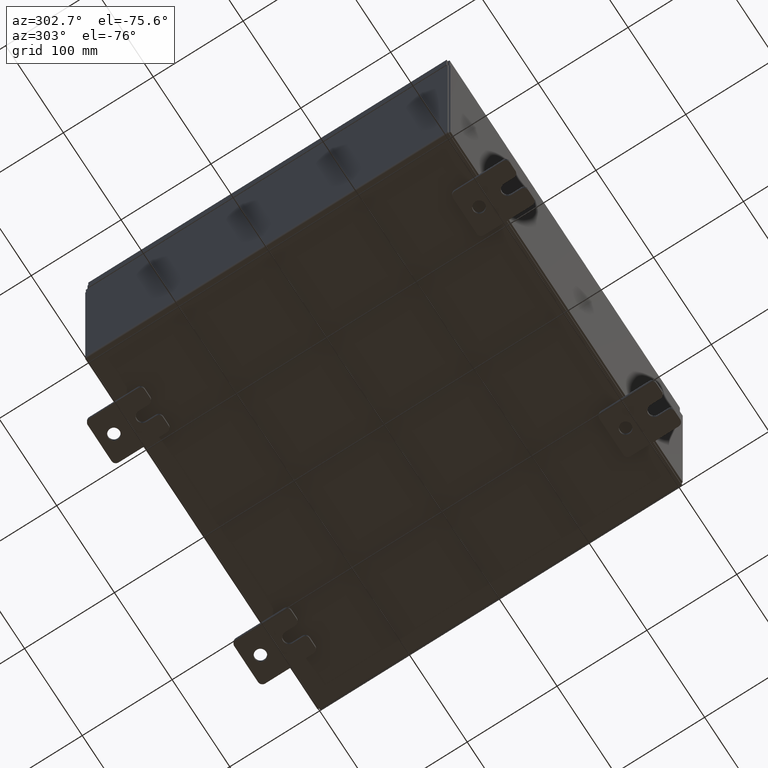
[diagram: clean part render]
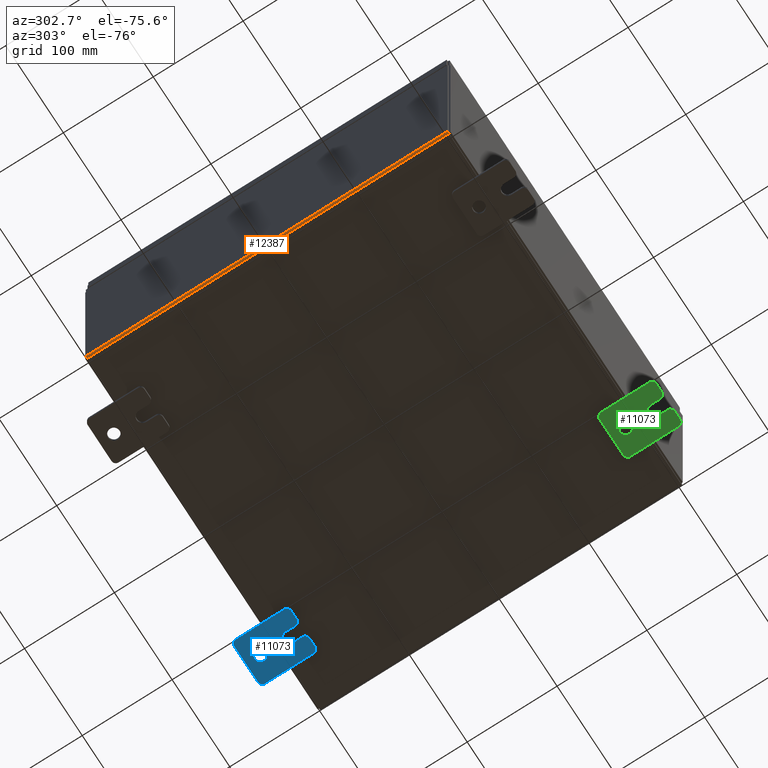
[diagram: same view with three faces highlighted in distinct colors, each labeled with its STEP entity id]
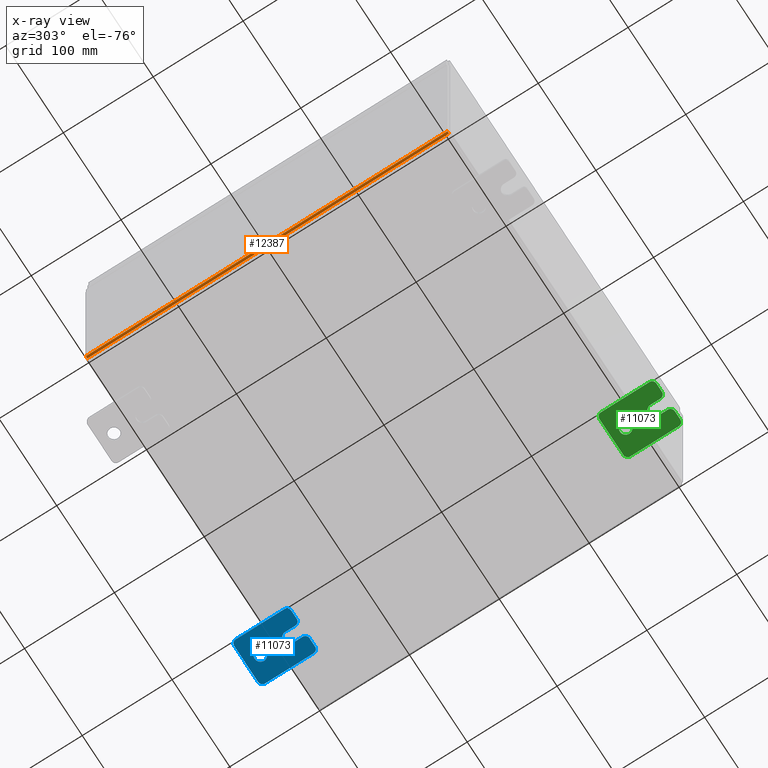
[diagram: x-ray of the same camera — body ghosted, the three highlighted faces saturated]
A machine part, auxiliary view with three faces highlighted in distinct colors.
The next image is the same camera in x-ray (body ghosted, the three faces saturated) — at least one of them is partly hidden behind the body in this view.
Their STEP definitions:

[orange] entity #12387 — the highlighted cylindrical surface (edge-blend (fillet) strip) has radius 2.2276 mm, axis along (0, -1, 0).
#310 = VERTEX_POINT ( 'NONE', #9939 ) ;
#2801 = ORIENTED_EDGE ( 'NONE', *, *, #24139, .F. ) ;
#5010 = ORIENTED_EDGE ( 'NONE', *, *, #13486, .F. ) ;
#7288 = VERTEX_POINT ( 'NONE', #57001 ) ;
#9370 = DIRECTION ( 'NONE',  ( 0.0000000000000000000, -1.000000000000000000, 0.0000000000000000000 ) ) ;
#9939 = CARTESIAN_POINT ( 'NONE',  ( -7.912300000000001000, 7.925299999999998200, -0.07470000000000000300 ) ) ;
#11060 = CARTESIAN_POINT ( 'NONE',  ( -7.912300000000001000, -7.925300000000000900, 0.01300000000000015200 ) ) ;
#11187 = VECTOR ( 'NONE', #59729, 39.37007874015748100 ) ;
#12387 = ADVANCED_FACE ( 'NONE', ( #16433 ), #40519, .T. ) ;
#13486 = EDGE_CURVE ( 'NONE', #7288, #42591, #56328, .T. ) ;
#16433 = FACE_OUTER_BOUND ( 'NONE', #27806, .T. ) ;
#19632 = VERTEX_POINT ( 'NONE', #46349 ) ;
#21120 = DIRECTION ( 'NONE',  ( -0.0000000000000000000, 1.000000000000000000, -0.0000000000000000000 ) ) ;
#24139 = EDGE_CURVE ( 'NONE', #42591, #310, #38346, .T. ) ;
#24592 = ORIENTED_EDGE ( 'NONE', *, *, #25073, .F. ) ;
#25073 = EDGE_CURVE ( 'NONE', #310, #19632, #36786, .T. ) ;
#27806 = EDGE_LOOP ( 'NONE', ( #2801, #5010, #38599, #24592 ) ) ;
#29325 = AXIS2_PLACEMENT_3D ( 'NONE', #49945, #21120, #54790 ) ;
#30381 = CARTESIAN_POINT ( 'NONE',  ( -8.000000000000001800, 7.925299999999998200, 0.01299999999999984700 ) ) ;
#30458 = VECTOR ( 'NONE', #59281, 39.37007874015748100 ) ;
#31957 = LINE ( 'NONE', #30381, #30458 ) ;
#35327 = DIRECTION ( 'NONE',  ( 0.0000000000000000000, -1.000000000000000000, 0.0000000000000000000 ) ) ;
#36786 = CIRCLE ( 'NONE', #29325, 0.08770000000000009700 ) ;
#38275 = CARTESIAN_POINT ( 'NONE',  ( -7.912300000000001000, -7.925300000000000900, 0.01300000000000015200 ) ) ;
#38346 = LINE ( 'NONE', #54837, #11187 ) ;
#38599 = ORIENTED_EDGE ( 'NONE', *, *, #40736, .T. ) ;
#40150 = DIRECTION ( 'NONE',  ( -1.000000000000000000, 0.0000000000000000000, -3.528701887483225300E-015 ) ) ;
#40519 = CYLINDRICAL_SURFACE ( 'NONE', #55989, 0.08770000000000026400 ) ;
#40736 = EDGE_CURVE ( 'NONE', #7288, #19632, #31957, .T. ) ;
#42591 = VERTEX_POINT ( 'NONE', #47969 ) ;
#43115 = DIRECTION ( 'NONE',  ( 0.0000000000000000000, 0.0000000000000000000, -1.000000000000000000 ) ) ;
#45932 = AXIS2_PLACEMENT_3D ( 'NONE', #38275, #9370, #43115 ) ;
#46349 = CARTESIAN_POINT ( 'NONE',  ( -8.000000000000001800, 7.925299999999998200, 0.01299999999999984300 ) ) ;
#47969 = CARTESIAN_POINT ( 'NONE',  ( -7.912300000000001000, -7.925300000000000900, -0.07469999999999994700 ) ) ;
#49945 = CARTESIAN_POINT ( 'NONE',  ( -7.912300000000001000, 7.925299999999998200, 0.01300000000000015200 ) ) ;
#54790 = DIRECTION ( 'NONE',  ( 0.0000000000000000000, 0.0000000000000000000, -1.000000000000000000 ) ) ;
#54837 = CARTESIAN_POINT ( 'NONE',  ( -7.912300000000001000, -7.925300000000000900, -0.07469999999999994700 ) ) ;
#55989 = AXIS2_PLACEMENT_3D ( 'NONE', #11060, #35327, #40150 ) ;
#56328 = CIRCLE ( 'NONE', #45932, 0.08770000000000009700 ) ;
#57001 = CARTESIAN_POINT ( 'NONE',  ( -8.000000000000001800, -7.925300000000000900, 0.01299999999999984700 ) ) ;
#59281 = DIRECTION ( 'NONE',  ( -0.0000000000000000000, 1.000000000000000000, -0.0000000000000000000 ) ) ;
#59729 = DIRECTION ( 'NONE',  ( -0.0000000000000000000, 1.000000000000000000, -0.0000000000000000000 ) ) ;

[blue] entity #11073 — the highlighted planar face has unit normal (0, 0, 1).
#50 = CIRCLE ( 'NONE', #11473, 0.1900000000000011100 ) ;
#167 = VERTEX_POINT ( 'NONE', #325 ) ;
#171 = LINE ( 'NONE', #50945, #13050 ) ;
#325 = CARTESIAN_POINT ( 'NONE',  ( -0.1880000000000001900, -0.6249999999999992200, 0.2500000000000005000 ) ) ;
#456 = VERTEX_POINT ( 'NONE', #2440 ) ;
#698 = EDGE_CURVE ( 'NONE', #36024, #17256, #17023, .T. ) ;
#1446 = LINE ( 'NONE', #18304, #27181 ) ;
#1564 = CIRCLE ( 'NONE', #2026, 0.1900000000000011400 ) ;
#2026 = AXIS2_PLACEMENT_3D ( 'NONE', #54652, #25823, #59563 ) ;
#2440 = CARTESIAN_POINT ( 'NONE',  ( -0.1880000000000004700, -1.060000000000002100, 0.2500000000000005000 ) ) ;
#2566 = CARTESIAN_POINT ( 'NONE',  ( -0.1879999999999997800, 1.249999999999994700, -0.8100000000000092700 ) ) ;
#2842 = DIRECTION ( 'NONE',  ( -0.0000000000000000000, 0.0000000000000000000, -1.000000000000000000 ) ) ;
#3186 = AXIS2_PLACEMENT_3D ( 'NONE', #12406, #46128, #17311 ) ;
#3743 = DIRECTION ( 'NONE',  ( 6.556435184794182400E-016, 1.000000000000000000, 0.0000000000000000000 ) ) ;
#3772 = ORIENTED_EDGE ( 'NONE', *, *, #698, .F. ) ;
#4382 = EDGE_CURVE ( 'NONE', #167, #45216, #7062, .T. ) ;
#4483 = CARTESIAN_POINT ( 'NONE',  ( -0.1879999999999997800, 1.059999999999996300, 0.8099999999999938400 ) ) ;
#5489 = CARTESIAN_POINT ( 'NONE',  ( -0.1879999999999997800, 1.249999999999997300, 0.8099999999999935000 ) ) ;
#5690 = DIRECTION ( 'NONE',  ( -1.000000000000000000, 6.523827964459549700E-016, 5.163192708025532000E-017 ) ) ;
#6153 = CARTESIAN_POINT ( 'NONE',  ( -0.1880000000000001900, -0.6249999999999992200, -0.2499999999999998600 ) ) ;
#6288 = DIRECTION ( 'NONE',  ( 0.0000000000000000000, -1.000000000000000000, 1.639108796198558100E-015 ) ) ;
#6434 = ORIENTED_EDGE ( 'NONE', *, *, #20566, .F. ) ;
#6732 = CARTESIAN_POINT ( 'NONE',  ( -0.1880000000000010000, 0.6249999999999992200, -7.703811342100550500E-020 ) ) ;
#7007 = VECTOR ( 'NONE', #3743, 39.37007874015748100 ) ;
#7062 = CIRCLE ( 'NONE', #25106, 0.2499999999999999200 ) ;
#7265 = CARTESIAN_POINT ( 'NONE',  ( -0.1880000000000010000, 0.6249999999999992200, -0.2499999999999999200 ) ) ;
#7661 = AXIS2_PLACEMENT_3D ( 'NONE', #6732, #40452, #11572 ) ;
#8169 = ORIENTED_EDGE ( 'NONE', *, *, #53731, .F. ) ;
#8386 = CIRCLE ( 'NONE', #33924, 0.1900000000000011100 ) ;
#8897 = VERTEX_POINT ( 'NONE', #46108 ) ;
#9354 = DIRECTION ( 'NONE',  ( 0.0000000000000000000, 0.0000000000000000000, -1.000000000000000000 ) ) ;
#9658 = FACE_OUTER_BOUND ( 'NONE', #44565, .T. ) ;
#10922 = CARTESIAN_POINT ( 'NONE',  ( -0.1879999999999997800, 1.249999999999997600, 0.9999999999999951200 ) ) ;
#11073 = ADVANCED_FACE ( 'NONE', ( #22542, #9658 ), #26958, .F. ) ;
#11473 = AXIS2_PLACEMENT_3D ( 'NONE', #21735, #55407, #26572 ) ;
#11572 = DIRECTION ( 'NONE',  ( 0.0000000000000000000, 0.0000000000000000000, -1.000000000000000000 ) ) ;
#11692 = ORIENTED_EDGE ( 'NONE', *, *, #55567, .T. ) ;
#11873 = ORIENTED_EDGE ( 'NONE', *, *, #55023, .T. ) ;
#11878 = EDGE_LOOP ( 'NONE', ( #25616, #40429 ) ) ;
#12260 = VERTEX_POINT ( 'NONE', #29871 ) ;
#12406 = CARTESIAN_POINT ( 'NONE',  ( -0.1880000000000010000, 0.6249999999999992200, -7.703811342100550500E-020 ) ) ;
#12911 = ORIENTED_EDGE ( 'NONE', *, *, #25696, .F. ) ;
#13050 = VECTOR ( 'NONE', #22122, 39.37007874015748100 ) ;
#15548 = ORIENTED_EDGE ( 'NONE', *, *, #41256, .F. ) ;
#17023 = LINE ( 'NONE', #34935, #42610 ) ;
#17256 = VERTEX_POINT ( 'NONE', #53196 ) ;
#17288 = CARTESIAN_POINT ( 'NONE',  ( -0.1880000000000004700, -1.060000000000003400, -0.2499999999999994400 ) ) ;
#17311 = DIRECTION ( 'NONE',  ( 0.0000000000000000000, 0.0000000000000000000, -1.000000000000000000 ) ) ;
#18304 = CARTESIAN_POINT ( 'NONE',  ( -0.1880000000000001900, -0.6249999999999992200, -0.2499999999999993900 ) ) ;
#18314 = CIRCLE ( 'NONE', #52655, 0.1900000000000011100 ) ;
#18351 = ORIENTED_EDGE ( 'NONE', *, *, #45524, .F. ) ;
#18809 = EDGE_CURVE ( 'NONE', #456, #17256, #1564, .T. ) ;
#20116 = VECTOR ( 'NONE', #6288, 39.37007874015748100 ) ;
#20566 = EDGE_CURVE ( 'NONE', #45216, #42399, #1446, .T. ) ;
#20664 = ORIENTED_EDGE ( 'NONE', *, *, #48561, .F. ) ;
#21203 = DIRECTION ( 'NONE',  ( -1.000000000000000000, -0.0000000000000000000, 0.0000000000000000000 ) ) ;
#21309 = VERTEX_POINT ( 'NONE', #57522 ) ;
#21735 = CARTESIAN_POINT ( 'NONE',  ( -0.1879999999999997800, -1.060000000000001600, 0.8099999999999978300 ) ) ;
#22122 = DIRECTION ( 'NONE',  ( 0.0000000000000000000, 1.000000000000000000, -1.639108796198558100E-015 ) ) ;
#22542 = FACE_BOUND ( 'NONE', #11878, .T. ) ;
#25106 = AXIS2_PLACEMENT_3D ( 'NONE', #34607, #5690, #39429 ) ;
#25616 = ORIENTED_EDGE ( 'NONE', *, *, #31927, .T. ) ;
#25696 = EDGE_CURVE ( 'NONE', #44514, #59093, #61670, .T. ) ;
#25823 = DIRECTION ( 'NONE',  ( -1.000000000000000000, -0.0000000000000000000, 0.0000000000000000000 ) ) ;
#26388 = AXIS2_PLACEMENT_3D ( 'NONE', #4483, #38254, #9354 ) ;
#26400 = DIRECTION ( 'NONE',  ( -1.000000000000000000, -0.0000000000000000000, 0.0000000000000000000 ) ) ;
#26460 = CIRCLE ( 'NONE', #3186, 0.2499999999999999200 ) ;
#26572 = DIRECTION ( 'NONE',  ( 0.0000000000000000000, 7.189073667537492800E-016, -1.000000000000000000 ) ) ;
#26629 = CARTESIAN_POINT ( 'NONE',  ( -0.1879999999999997800, -1.060000000000003400, -0.4400000000000005000 ) ) ;
#26958 = PLANE ( 'NONE',  #46669 ) ;
#27181 = VECTOR ( 'NONE', #51956, 39.37007874015748100 ) ;
#27854 = CARTESIAN_POINT ( 'NONE',  ( -0.1880000000000005800, -1.250000000000003800, 0.2500000000000005000 ) ) ;
#28200 = CIRCLE ( 'NONE', #26388, 0.1900000000000011100 ) ;
#28379 = ORIENTED_EDGE ( 'NONE', *, *, #45416, .T. ) ;
#29677 = CARTESIAN_POINT ( 'NONE',  ( -0.1879999999999997800, 1.249999999999994200, -1.000000000000010400 ) ) ;
#29796 = CARTESIAN_POINT ( 'NONE',  ( -0.1880000000000010000, 0.6249999999999992200, 0.2499999999999999200 ) ) ;
#29871 = CARTESIAN_POINT ( 'NONE',  ( -0.1879999999999997800, -1.060000000000001200, 0.9999999999999988900 ) ) ;
#30236 = ORIENTED_EDGE ( 'NONE', *, *, #18809, .T. ) ;
#30795 = EDGE_CURVE ( 'NONE', #44514, #21309, #8386, .T. ) ;
#31302 = VERTEX_POINT ( 'NONE', #48968 ) ;
#31462 = DIRECTION ( 'NONE',  ( 0.0000000000000000000, 0.0000000000000000000, -1.000000000000000000 ) ) ;
#31797 = DIRECTION ( 'NONE',  ( 1.000000000000000000, 0.0000000000000000000, -0.0000000000000000000 ) ) ;
#31927 = EDGE_CURVE ( 'NONE', #56407, #37713, #55086, .T. ) ;
#32058 = EDGE_CURVE ( 'NONE', #37713, #56407, #26460, .T. ) ;
#33924 = AXIS2_PLACEMENT_3D ( 'NONE', #50026, #21203, #54878 ) ;
#34306 = DIRECTION ( 'NONE',  ( 0.0000000000000000000, 1.639108796198553600E-015, 1.000000000000000000 ) ) ;
#34607 = CARTESIAN_POINT ( 'NONE',  ( -0.1880000000000001900, -0.6249999999999992200, 6.829619984160658000E-017 ) ) ;
#34723 = DIRECTION ( 'NONE',  ( 0.0000000000000000000, -1.639108796198553600E-015, -1.000000000000000000 ) ) ;
#34935 = CARTESIAN_POINT ( 'NONE',  ( -0.1879999999999997800, -1.250000000000002200, 0.9999999999999992200 ) ) ;
#35997 = VECTOR ( 'NONE', #34306, 39.37007874015748100 ) ;
#36024 = VERTEX_POINT ( 'NONE', #39733 ) ;
#36075 = CIRCLE ( 'NONE', #47463, 0.1900000000000011100 ) ;
#37713 = VERTEX_POINT ( 'NONE', #29796 ) ;
#38199 = ORIENTED_EDGE ( 'NONE', *, *, #40362, .T. ) ;
#38254 = DIRECTION ( 'NONE',  ( -1.000000000000000000, -0.0000000000000000000, 0.0000000000000000000 ) ) ;
#39429 = DIRECTION ( 'NONE',  ( -6.829619984160660000E-016, -1.000000000000000000, 0.0000000000000000000 ) ) ;
#39733 = CARTESIAN_POINT ( 'NONE',  ( -0.1879999999999997800, -1.250000000000002400, 0.8099999999999980500 ) ) ;
#40362 = EDGE_CURVE ( 'NONE', #61108, #59093, #28200, .T. ) ;
#40429 = ORIENTED_EDGE ( 'NONE', *, *, #32058, .T. ) ;
#40452 = DIRECTION ( 'NONE',  ( 1.000000000000000000, -0.0000000000000000000, -5.163192708025532000E-017 ) ) ;
#41256 = EDGE_CURVE ( 'NONE', #456, #167, #45492, .T. ) ;
#42399 = VERTEX_POINT ( 'NONE', #17288 ) ;
#42610 = VECTOR ( 'NONE', #34723, 39.37007874015748100 ) ;
#42836 = VECTOR ( 'NONE', #56521, 39.37007874015748100 ) ;
#44215 = CARTESIAN_POINT ( 'NONE',  ( -0.1879999999999997800, -1.250000000000005300, -0.8100000000000047200 ) ) ;
#44366 = LINE ( 'NONE', #51653, #42836 ) ;
#44514 = VERTEX_POINT ( 'NONE', #2566 ) ;
#44565 = EDGE_LOOP ( 'NONE', ( #3772, #11692, #20664, #38199, #12911, #45017, #8169, #11873, #18351, #28379, #6434, #48901, #15548, #30236 ) ) ;
#45017 = ORIENTED_EDGE ( 'NONE', *, *, #30795, .T. ) ;
#45216 = VERTEX_POINT ( 'NONE', #6153 ) ;
#45416 = EDGE_CURVE ( 'NONE', #8897, #42399, #36075, .T. ) ;
#45492 = LINE ( 'NONE', #27854, #7007 ) ;
#45524 = EDGE_CURVE ( 'NONE', #8897, #53501, #44366, .T. ) ;
#46108 = CARTESIAN_POINT ( 'NONE',  ( -0.1879999999999997800, -1.250000000000004700, -0.4400000000000002200 ) ) ;
#46128 = DIRECTION ( 'NONE',  ( 1.000000000000000000, -0.0000000000000000000, -5.163192708025532000E-017 ) ) ;
#46669 = AXIS2_PLACEMENT_3D ( 'NONE', #50951, #31797, #2842 ) ;
#47463 = AXIS2_PLACEMENT_3D ( 'NONE', #26629, #60369, #31462 ) ;
#48561 = EDGE_CURVE ( 'NONE', #61108, #12260, #50237, .T. ) ;
#48901 = ORIENTED_EDGE ( 'NONE', *, *, #4382, .F. ) ;
#48968 = CARTESIAN_POINT ( 'NONE',  ( -0.1879999999999997800, -1.060000000000004500, -1.000000000000006400 ) ) ;
#50026 = CARTESIAN_POINT ( 'NONE',  ( -0.1879999999999997800, 1.059999999999993600, -0.8100000000000089400 ) ) ;
#50237 = LINE ( 'NONE', #10922, #20116 ) ;
#50945 = CARTESIAN_POINT ( 'NONE',  ( -0.1879999999999997800, -1.250000000000005600, -1.000000000000006200 ) ) ;
#50951 = CARTESIAN_POINT ( 'NONE',  ( -0.1879999999999997800, 0.0000000000000000000, 0.0000000000000000000 ) ) ;
#51255 = CARTESIAN_POINT ( 'NONE',  ( -0.1879999999999997800, 1.059999999999996500, 0.9999999999999953400 ) ) ;
#51653 = CARTESIAN_POINT ( 'NONE',  ( -0.1879999999999997800, -1.250000000000002200, 0.9999999999999992200 ) ) ;
#51956 = DIRECTION ( 'NONE',  ( -6.556435184794182400E-016, -1.000000000000000000, -1.639108796198545600E-016 ) ) ;
#52655 = AXIS2_PLACEMENT_3D ( 'NONE', #55231, #26400, #60128 ) ;
#53196 = CARTESIAN_POINT ( 'NONE',  ( -0.1879999999999997800, -1.250000000000003100, 0.4400000000000020000 ) ) ;
#53501 = VERTEX_POINT ( 'NONE', #44215 ) ;
#53731 = EDGE_CURVE ( 'NONE', #31302, #21309, #171, .T. ) ;
#54652 = CARTESIAN_POINT ( 'NONE',  ( -0.1879999999999997800, -1.060000000000002100, 0.4400000000000016700 ) ) ;
#54878 = DIRECTION ( 'NONE',  ( 0.0000000000000000000, 0.0000000000000000000, -1.000000000000000000 ) ) ;
#55023 = EDGE_CURVE ( 'NONE', #31302, #53501, #18314, .T. ) ;
#55086 = CIRCLE ( 'NONE', #7661, 0.2499999999999999200 ) ;
#55231 = CARTESIAN_POINT ( 'NONE',  ( -0.1879999999999997800, -1.060000000000004100, -0.8100000000000050500 ) ) ;
#55407 = DIRECTION ( 'NONE',  ( -1.000000000000000000, -0.0000000000000000000, 0.0000000000000000000 ) ) ;
#55567 = EDGE_CURVE ( 'NONE', #36024, #12260, #50, .T. ) ;
#56407 = VERTEX_POINT ( 'NONE', #7265 ) ;
#56521 = DIRECTION ( 'NONE',  ( 0.0000000000000000000, -1.639108796198553600E-015, -1.000000000000000000 ) ) ;
#57522 = CARTESIAN_POINT ( 'NONE',  ( -0.1879999999999997800, 1.059999999999993400, -1.000000000000010000 ) ) ;
#59093 = VERTEX_POINT ( 'NONE', #5489 ) ;
#59563 = DIRECTION ( 'NONE',  ( 0.0000000000000000000, 0.0000000000000000000, -1.000000000000000000 ) ) ;
#60128 = DIRECTION ( 'NONE',  ( 0.0000000000000000000, 0.0000000000000000000, -1.000000000000000000 ) ) ;
#60369 = DIRECTION ( 'NONE',  ( -1.000000000000000000, -0.0000000000000000000, 0.0000000000000000000 ) ) ;
#61108 = VERTEX_POINT ( 'NONE', #51255 ) ;
#61670 = LINE ( 'NONE', #29677, #35997 ) ;

[green] entity #11073 — the highlighted planar face has unit normal (0, 0, 1).
#50 = CIRCLE ( 'NONE', #11473, 0.1900000000000011100 ) ;
#167 = VERTEX_POINT ( 'NONE', #325 ) ;
#171 = LINE ( 'NONE', #50945, #13050 ) ;
#325 = CARTESIAN_POINT ( 'NONE',  ( -0.1880000000000001900, -0.6249999999999992200, 0.2500000000000005000 ) ) ;
#456 = VERTEX_POINT ( 'NONE', #2440 ) ;
#698 = EDGE_CURVE ( 'NONE', #36024, #17256, #17023, .T. ) ;
#1446 = LINE ( 'NONE', #18304, #27181 ) ;
#1564 = CIRCLE ( 'NONE', #2026, 0.1900000000000011400 ) ;
#2026 = AXIS2_PLACEMENT_3D ( 'NONE', #54652, #25823, #59563 ) ;
#2440 = CARTESIAN_POINT ( 'NONE',  ( -0.1880000000000004700, -1.060000000000002100, 0.2500000000000005000 ) ) ;
#2566 = CARTESIAN_POINT ( 'NONE',  ( -0.1879999999999997800, 1.249999999999994700, -0.8100000000000092700 ) ) ;
#2842 = DIRECTION ( 'NONE',  ( -0.0000000000000000000, 0.0000000000000000000, -1.000000000000000000 ) ) ;
#3186 = AXIS2_PLACEMENT_3D ( 'NONE', #12406, #46128, #17311 ) ;
#3743 = DIRECTION ( 'NONE',  ( 6.556435184794182400E-016, 1.000000000000000000, 0.0000000000000000000 ) ) ;
#3772 = ORIENTED_EDGE ( 'NONE', *, *, #698, .F. ) ;
#4382 = EDGE_CURVE ( 'NONE', #167, #45216, #7062, .T. ) ;
#4483 = CARTESIAN_POINT ( 'NONE',  ( -0.1879999999999997800, 1.059999999999996300, 0.8099999999999938400 ) ) ;
#5489 = CARTESIAN_POINT ( 'NONE',  ( -0.1879999999999997800, 1.249999999999997300, 0.8099999999999935000 ) ) ;
#5690 = DIRECTION ( 'NONE',  ( -1.000000000000000000, 6.523827964459549700E-016, 5.163192708025532000E-017 ) ) ;
#6153 = CARTESIAN_POINT ( 'NONE',  ( -0.1880000000000001900, -0.6249999999999992200, -0.2499999999999998600 ) ) ;
#6288 = DIRECTION ( 'NONE',  ( 0.0000000000000000000, -1.000000000000000000, 1.639108796198558100E-015 ) ) ;
#6434 = ORIENTED_EDGE ( 'NONE', *, *, #20566, .F. ) ;
#6732 = CARTESIAN_POINT ( 'NONE',  ( -0.1880000000000010000, 0.6249999999999992200, -7.703811342100550500E-020 ) ) ;
#7007 = VECTOR ( 'NONE', #3743, 39.37007874015748100 ) ;
#7062 = CIRCLE ( 'NONE', #25106, 0.2499999999999999200 ) ;
#7265 = CARTESIAN_POINT ( 'NONE',  ( -0.1880000000000010000, 0.6249999999999992200, -0.2499999999999999200 ) ) ;
#7661 = AXIS2_PLACEMENT_3D ( 'NONE', #6732, #40452, #11572 ) ;
#8169 = ORIENTED_EDGE ( 'NONE', *, *, #53731, .F. ) ;
#8386 = CIRCLE ( 'NONE', #33924, 0.1900000000000011100 ) ;
#8897 = VERTEX_POINT ( 'NONE', #46108 ) ;
#9354 = DIRECTION ( 'NONE',  ( 0.0000000000000000000, 0.0000000000000000000, -1.000000000000000000 ) ) ;
#9658 = FACE_OUTER_BOUND ( 'NONE', #44565, .T. ) ;
#10922 = CARTESIAN_POINT ( 'NONE',  ( -0.1879999999999997800, 1.249999999999997600, 0.9999999999999951200 ) ) ;
#11073 = ADVANCED_FACE ( 'NONE', ( #22542, #9658 ), #26958, .F. ) ;
#11473 = AXIS2_PLACEMENT_3D ( 'NONE', #21735, #55407, #26572 ) ;
#11572 = DIRECTION ( 'NONE',  ( 0.0000000000000000000, 0.0000000000000000000, -1.000000000000000000 ) ) ;
#11692 = ORIENTED_EDGE ( 'NONE', *, *, #55567, .T. ) ;
#11873 = ORIENTED_EDGE ( 'NONE', *, *, #55023, .T. ) ;
#11878 = EDGE_LOOP ( 'NONE', ( #25616, #40429 ) ) ;
#12260 = VERTEX_POINT ( 'NONE', #29871 ) ;
#12406 = CARTESIAN_POINT ( 'NONE',  ( -0.1880000000000010000, 0.6249999999999992200, -7.703811342100550500E-020 ) ) ;
#12911 = ORIENTED_EDGE ( 'NONE', *, *, #25696, .F. ) ;
#13050 = VECTOR ( 'NONE', #22122, 39.37007874015748100 ) ;
#15548 = ORIENTED_EDGE ( 'NONE', *, *, #41256, .F. ) ;
#17023 = LINE ( 'NONE', #34935, #42610 ) ;
#17256 = VERTEX_POINT ( 'NONE', #53196 ) ;
#17288 = CARTESIAN_POINT ( 'NONE',  ( -0.1880000000000004700, -1.060000000000003400, -0.2499999999999994400 ) ) ;
#17311 = DIRECTION ( 'NONE',  ( 0.0000000000000000000, 0.0000000000000000000, -1.000000000000000000 ) ) ;
#18304 = CARTESIAN_POINT ( 'NONE',  ( -0.1880000000000001900, -0.6249999999999992200, -0.2499999999999993900 ) ) ;
#18314 = CIRCLE ( 'NONE', #52655, 0.1900000000000011100 ) ;
#18351 = ORIENTED_EDGE ( 'NONE', *, *, #45524, .F. ) ;
#18809 = EDGE_CURVE ( 'NONE', #456, #17256, #1564, .T. ) ;
#20116 = VECTOR ( 'NONE', #6288, 39.37007874015748100 ) ;
#20566 = EDGE_CURVE ( 'NONE', #45216, #42399, #1446, .T. ) ;
#20664 = ORIENTED_EDGE ( 'NONE', *, *, #48561, .F. ) ;
#21203 = DIRECTION ( 'NONE',  ( -1.000000000000000000, -0.0000000000000000000, 0.0000000000000000000 ) ) ;
#21309 = VERTEX_POINT ( 'NONE', #57522 ) ;
#21735 = CARTESIAN_POINT ( 'NONE',  ( -0.1879999999999997800, -1.060000000000001600, 0.8099999999999978300 ) ) ;
#22122 = DIRECTION ( 'NONE',  ( 0.0000000000000000000, 1.000000000000000000, -1.639108796198558100E-015 ) ) ;
#22542 = FACE_BOUND ( 'NONE', #11878, .T. ) ;
#25106 = AXIS2_PLACEMENT_3D ( 'NONE', #34607, #5690, #39429 ) ;
#25616 = ORIENTED_EDGE ( 'NONE', *, *, #31927, .T. ) ;
#25696 = EDGE_CURVE ( 'NONE', #44514, #59093, #61670, .T. ) ;
#25823 = DIRECTION ( 'NONE',  ( -1.000000000000000000, -0.0000000000000000000, 0.0000000000000000000 ) ) ;
#26388 = AXIS2_PLACEMENT_3D ( 'NONE', #4483, #38254, #9354 ) ;
#26400 = DIRECTION ( 'NONE',  ( -1.000000000000000000, -0.0000000000000000000, 0.0000000000000000000 ) ) ;
#26460 = CIRCLE ( 'NONE', #3186, 0.2499999999999999200 ) ;
#26572 = DIRECTION ( 'NONE',  ( 0.0000000000000000000, 7.189073667537492800E-016, -1.000000000000000000 ) ) ;
#26629 = CARTESIAN_POINT ( 'NONE',  ( -0.1879999999999997800, -1.060000000000003400, -0.4400000000000005000 ) ) ;
#26958 = PLANE ( 'NONE',  #46669 ) ;
#27181 = VECTOR ( 'NONE', #51956, 39.37007874015748100 ) ;
#27854 = CARTESIAN_POINT ( 'NONE',  ( -0.1880000000000005800, -1.250000000000003800, 0.2500000000000005000 ) ) ;
#28200 = CIRCLE ( 'NONE', #26388, 0.1900000000000011100 ) ;
#28379 = ORIENTED_EDGE ( 'NONE', *, *, #45416, .T. ) ;
#29677 = CARTESIAN_POINT ( 'NONE',  ( -0.1879999999999997800, 1.249999999999994200, -1.000000000000010400 ) ) ;
#29796 = CARTESIAN_POINT ( 'NONE',  ( -0.1880000000000010000, 0.6249999999999992200, 0.2499999999999999200 ) ) ;
#29871 = CARTESIAN_POINT ( 'NONE',  ( -0.1879999999999997800, -1.060000000000001200, 0.9999999999999988900 ) ) ;
#30236 = ORIENTED_EDGE ( 'NONE', *, *, #18809, .T. ) ;
#30795 = EDGE_CURVE ( 'NONE', #44514, #21309, #8386, .T. ) ;
#31302 = VERTEX_POINT ( 'NONE', #48968 ) ;
#31462 = DIRECTION ( 'NONE',  ( 0.0000000000000000000, 0.0000000000000000000, -1.000000000000000000 ) ) ;
#31797 = DIRECTION ( 'NONE',  ( 1.000000000000000000, 0.0000000000000000000, -0.0000000000000000000 ) ) ;
#31927 = EDGE_CURVE ( 'NONE', #56407, #37713, #55086, .T. ) ;
#32058 = EDGE_CURVE ( 'NONE', #37713, #56407, #26460, .T. ) ;
#33924 = AXIS2_PLACEMENT_3D ( 'NONE', #50026, #21203, #54878 ) ;
#34306 = DIRECTION ( 'NONE',  ( 0.0000000000000000000, 1.639108796198553600E-015, 1.000000000000000000 ) ) ;
#34607 = CARTESIAN_POINT ( 'NONE',  ( -0.1880000000000001900, -0.6249999999999992200, 6.829619984160658000E-017 ) ) ;
#34723 = DIRECTION ( 'NONE',  ( 0.0000000000000000000, -1.639108796198553600E-015, -1.000000000000000000 ) ) ;
#34935 = CARTESIAN_POINT ( 'NONE',  ( -0.1879999999999997800, -1.250000000000002200, 0.9999999999999992200 ) ) ;
#35997 = VECTOR ( 'NONE', #34306, 39.37007874015748100 ) ;
#36024 = VERTEX_POINT ( 'NONE', #39733 ) ;
#36075 = CIRCLE ( 'NONE', #47463, 0.1900000000000011100 ) ;
#37713 = VERTEX_POINT ( 'NONE', #29796 ) ;
#38199 = ORIENTED_EDGE ( 'NONE', *, *, #40362, .T. ) ;
#38254 = DIRECTION ( 'NONE',  ( -1.000000000000000000, -0.0000000000000000000, 0.0000000000000000000 ) ) ;
#39429 = DIRECTION ( 'NONE',  ( -6.829619984160660000E-016, -1.000000000000000000, 0.0000000000000000000 ) ) ;
#39733 = CARTESIAN_POINT ( 'NONE',  ( -0.1879999999999997800, -1.250000000000002400, 0.8099999999999980500 ) ) ;
#40362 = EDGE_CURVE ( 'NONE', #61108, #59093, #28200, .T. ) ;
#40429 = ORIENTED_EDGE ( 'NONE', *, *, #32058, .T. ) ;
#40452 = DIRECTION ( 'NONE',  ( 1.000000000000000000, -0.0000000000000000000, -5.163192708025532000E-017 ) ) ;
#41256 = EDGE_CURVE ( 'NONE', #456, #167, #45492, .T. ) ;
#42399 = VERTEX_POINT ( 'NONE', #17288 ) ;
#42610 = VECTOR ( 'NONE', #34723, 39.37007874015748100 ) ;
#42836 = VECTOR ( 'NONE', #56521, 39.37007874015748100 ) ;
#44215 = CARTESIAN_POINT ( 'NONE',  ( -0.1879999999999997800, -1.250000000000005300, -0.8100000000000047200 ) ) ;
#44366 = LINE ( 'NONE', #51653, #42836 ) ;
#44514 = VERTEX_POINT ( 'NONE', #2566 ) ;
#44565 = EDGE_LOOP ( 'NONE', ( #3772, #11692, #20664, #38199, #12911, #45017, #8169, #11873, #18351, #28379, #6434, #48901, #15548, #30236 ) ) ;
#45017 = ORIENTED_EDGE ( 'NONE', *, *, #30795, .T. ) ;
#45216 = VERTEX_POINT ( 'NONE', #6153 ) ;
#45416 = EDGE_CURVE ( 'NONE', #8897, #42399, #36075, .T. ) ;
#45492 = LINE ( 'NONE', #27854, #7007 ) ;
#45524 = EDGE_CURVE ( 'NONE', #8897, #53501, #44366, .T. ) ;
#46108 = CARTESIAN_POINT ( 'NONE',  ( -0.1879999999999997800, -1.250000000000004700, -0.4400000000000002200 ) ) ;
#46128 = DIRECTION ( 'NONE',  ( 1.000000000000000000, -0.0000000000000000000, -5.163192708025532000E-017 ) ) ;
#46669 = AXIS2_PLACEMENT_3D ( 'NONE', #50951, #31797, #2842 ) ;
#47463 = AXIS2_PLACEMENT_3D ( 'NONE', #26629, #60369, #31462 ) ;
#48561 = EDGE_CURVE ( 'NONE', #61108, #12260, #50237, .T. ) ;
#48901 = ORIENTED_EDGE ( 'NONE', *, *, #4382, .F. ) ;
#48968 = CARTESIAN_POINT ( 'NONE',  ( -0.1879999999999997800, -1.060000000000004500, -1.000000000000006400 ) ) ;
#50026 = CARTESIAN_POINT ( 'NONE',  ( -0.1879999999999997800, 1.059999999999993600, -0.8100000000000089400 ) ) ;
#50237 = LINE ( 'NONE', #10922, #20116 ) ;
#50945 = CARTESIAN_POINT ( 'NONE',  ( -0.1879999999999997800, -1.250000000000005600, -1.000000000000006200 ) ) ;
#50951 = CARTESIAN_POINT ( 'NONE',  ( -0.1879999999999997800, 0.0000000000000000000, 0.0000000000000000000 ) ) ;
#51255 = CARTESIAN_POINT ( 'NONE',  ( -0.1879999999999997800, 1.059999999999996500, 0.9999999999999953400 ) ) ;
#51653 = CARTESIAN_POINT ( 'NONE',  ( -0.1879999999999997800, -1.250000000000002200, 0.9999999999999992200 ) ) ;
#51956 = DIRECTION ( 'NONE',  ( -6.556435184794182400E-016, -1.000000000000000000, -1.639108796198545600E-016 ) ) ;
#52655 = AXIS2_PLACEMENT_3D ( 'NONE', #55231, #26400, #60128 ) ;
#53196 = CARTESIAN_POINT ( 'NONE',  ( -0.1879999999999997800, -1.250000000000003100, 0.4400000000000020000 ) ) ;
#53501 = VERTEX_POINT ( 'NONE', #44215 ) ;
#53731 = EDGE_CURVE ( 'NONE', #31302, #21309, #171, .T. ) ;
#54652 = CARTESIAN_POINT ( 'NONE',  ( -0.1879999999999997800, -1.060000000000002100, 0.4400000000000016700 ) ) ;
#54878 = DIRECTION ( 'NONE',  ( 0.0000000000000000000, 0.0000000000000000000, -1.000000000000000000 ) ) ;
#55023 = EDGE_CURVE ( 'NONE', #31302, #53501, #18314, .T. ) ;
#55086 = CIRCLE ( 'NONE', #7661, 0.2499999999999999200 ) ;
#55231 = CARTESIAN_POINT ( 'NONE',  ( -0.1879999999999997800, -1.060000000000004100, -0.8100000000000050500 ) ) ;
#55407 = DIRECTION ( 'NONE',  ( -1.000000000000000000, -0.0000000000000000000, 0.0000000000000000000 ) ) ;
#55567 = EDGE_CURVE ( 'NONE', #36024, #12260, #50, .T. ) ;
#56407 = VERTEX_POINT ( 'NONE', #7265 ) ;
#56521 = DIRECTION ( 'NONE',  ( 0.0000000000000000000, -1.639108796198553600E-015, -1.000000000000000000 ) ) ;
#57522 = CARTESIAN_POINT ( 'NONE',  ( -0.1879999999999997800, 1.059999999999993400, -1.000000000000010000 ) ) ;
#59093 = VERTEX_POINT ( 'NONE', #5489 ) ;
#59563 = DIRECTION ( 'NONE',  ( 0.0000000000000000000, 0.0000000000000000000, -1.000000000000000000 ) ) ;
#60128 = DIRECTION ( 'NONE',  ( 0.0000000000000000000, 0.0000000000000000000, -1.000000000000000000 ) ) ;
#60369 = DIRECTION ( 'NONE',  ( -1.000000000000000000, -0.0000000000000000000, 0.0000000000000000000 ) ) ;
#61108 = VERTEX_POINT ( 'NONE', #51255 ) ;
#61670 = LINE ( 'NONE', #29677, #35997 ) ;